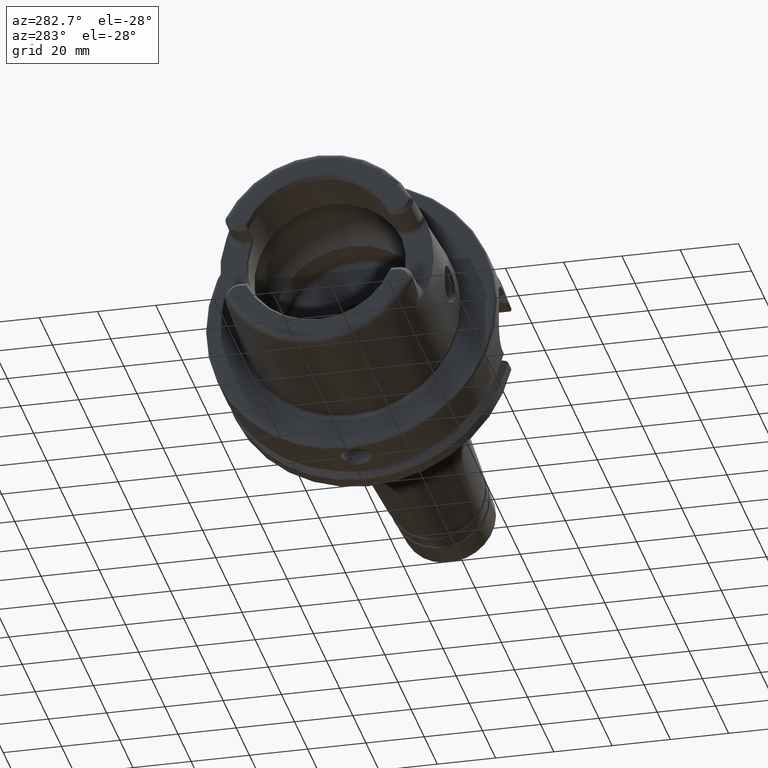
[diagram: clean part render]
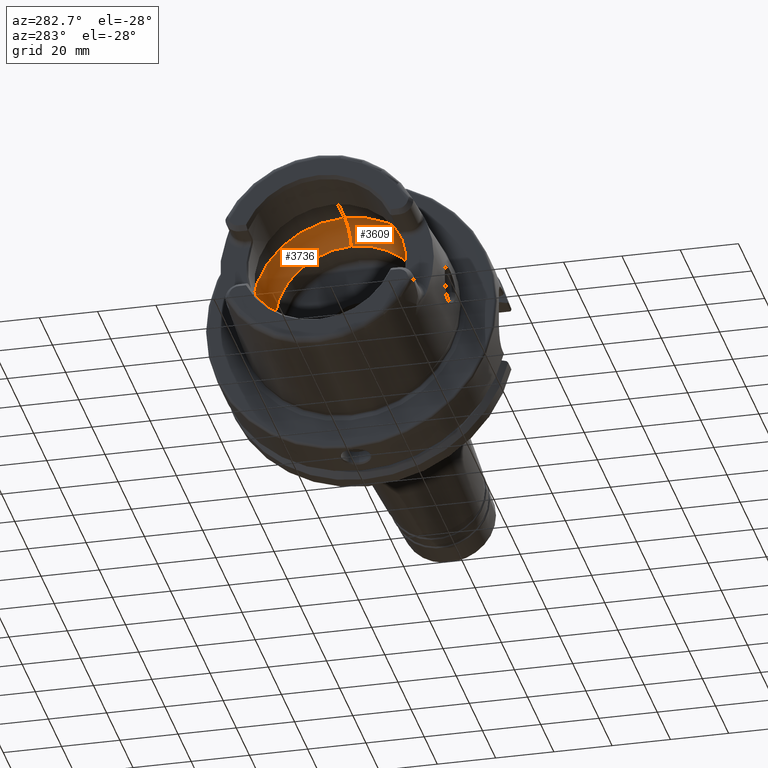
[diagram: same view with one multi-face feature highlighted, each face labeled with its STEP entity id]
A machine part, auxiliary view. The highlighted faces form ONE feature: a constant-radius fillet chain: 2 tangent blend faces with common blend radius 12 mm. The faces share edges in the B-rep.
Their STEP definitions:
[1] entity #3736 (Torus):
#227=CARTESIAN_POINT('',(1.283390375555E-2,0.E0,0.E0));
#228=DIRECTION('',(1.E0,0.E0,0.E0));
#229=DIRECTION('',(0.E0,0.E0,-1.E0));
#230=AXIS2_PLACEMENT_3D('',#227,#228,#229);
#366=CARTESIAN_POINT('',(-3.837322834646E-1,0.E0,-7.865275984252E-1));
#367=DIRECTION('',(0.E0,1.E0,0.E0));
#368=DIRECTION('',(8.393984296159E-1,0.E0,-5.435165833333E-1));
#369=AXIS2_PLACEMENT_3D('',#366,#367,#368);
#371=CARTESIAN_POINT('',(-3.837322834646E-1,0.E0,7.865275984252E-1));
#372=DIRECTION('',(0.E0,-1.E0,0.E0));
#373=DIRECTION('',(8.393984296159E-1,0.E0,5.435165833333E-1));
#374=AXIS2_PLACEMENT_3D('',#371,#372,#373);
#427=CARTESIAN_POINT('',(-3.837322834646E-1,1.253784565967E0,
-1.141317448395E-1));
#444=CARTESIAN_POINT('',(-3.837322834646E-1,0.E0,0.E0));
#445=DIRECTION('',(1.E0,0.E0,0.E0));
#446=DIRECTION('',(0.E0,0.E0,-1.E0));
#447=AXIS2_PLACEMENT_3D('',#444,#445,#446);
#449=CARTESIAN_POINT('',(-3.837322834646E-1,0.E0,0.E0));
#450=DIRECTION('',(1.E0,0.E0,0.E0));
#451=DIRECTION('',(0.E0,9.958823615031E-1,9.065496151294E-2));
#452=AXIS2_PLACEMENT_3D('',#449,#450,#451);
#469=CARTESIAN_POINT('',(-3.837322834646E-1,1.253784565967E0,
1.141317448395E-1));
#471=CARTESIAN_POINT('',(-3.543307086614E-1,1.258052776756E0,0.E0));
#472=CARTESIAN_POINT('',(-3.543307086614E-1,1.258052776756E0,
-1.331146077101E-2));
#473=CARTESIAN_POINT('',(-3.565878121064E-1,1.257774742075E0,
-3.988217029902E-2));
#474=CARTESIAN_POINT('',(-3.665535088096E-1,1.256456931714E0,
-7.842776623702E-2));
#475=CARTESIAN_POINT('',(-3.773691196250E-1,1.254834206046E0,
-1.026010131168E-1));
#476=CARTESIAN_POINT('',(-3.837322834646E-1,1.253784565967E0,
-1.141317448395E-1));
#478=CARTESIAN_POINT('',(-3.837322834646E-1,1.253784565967E0,
1.141317448395E-1));
#479=CARTESIAN_POINT('',(-3.773672210967E-1,1.254834519219E0,
1.025975727810E-1));
#480=CARTESIAN_POINT('',(-3.665503928331E-1,1.256457365407E0,
7.841910827318E-2));
#481=CARTESIAN_POINT('',(-3.565871011463E-1,1.257774826191E0,
3.987631070444E-2));
#482=CARTESIAN_POINT('',(-3.543307086614E-1,1.258052776756E0,
1.330896812620E-2));
#483=CARTESIAN_POINT('',(-3.543307086614E-1,1.258052776756E0,0.E0));
#2826=CARTESIAN_POINT('',(1.283390375555E-2,0.E0,-1.043307086614E0));
#2827=CARTESIAN_POINT('',(1.283390375555E-2,0.E0,1.043307086614E0));
#2828=VERTEX_POINT('',#2826);
#2829=VERTEX_POINT('',#2827);
#2830=CARTESIAN_POINT('',(-3.837322834646E-1,0.E0,-1.258968543307E0));
#2831=VERTEX_POINT('',#2830);
#2832=CARTESIAN_POINT('',(-3.837322834646E-1,0.E0,1.258968543307E0));
#2833=VERTEX_POINT('',#2832);
#3111=VERTEX_POINT('',#427);
#3113=VERTEX_POINT('',#469);
#3117=VERTEX_POINT('',#471);
#3722=CARTESIAN_POINT('',(-3.837322834646E-1,0.E0,0.E0));
#3723=DIRECTION('',(1.E0,0.E0,0.E0));
#3724=DIRECTION('',(0.E0,0.E0,1.E0));
#3725=AXIS2_PLACEMENT_3D('',#3722,#3723,#3724);
#3726=TOROIDAL_SURFACE('',#3725,7.865275984252E-1,4.724409448819E-1);
#3727=ORIENTED_EDGE('',*,*,#3619,.F.);
#3728=ORIENTED_EDGE('',*,*,#3681,.F.);
#3729=ORIENTED_EDGE('',*,*,#3716,.T.);
#3730=ORIENTED_EDGE('',*,*,#3601,.F.);
#3731=ORIENTED_EDGE('',*,*,#3513,.F.);
#3732=ORIENTED_EDGE('',*,*,#3598,.T.);
#3733=ORIENTED_EDGE('',*,*,#3708,.T.);
#3734=EDGE_LOOP('',(#3727,#3728,#3729,#3730,#3731,#3732,#3733));
#3735=FACE_OUTER_BOUND('',#3734,.F.);
#3736=ADVANCED_FACE('',(#3735),#3726,.F.);
#231=CIRCLE('',#230,1.043307086614E0);
#370=CIRCLE('',#369,4.724409448819E-1);
#375=CIRCLE('',#374,4.724409448819E-1);
#448=CIRCLE('',#447,1.258968543307E0);
#453=CIRCLE('',#452,1.258968543307E0);
#477=B_SPLINE_CURVE_WITH_KNOTS('',3,(#471,#472,#473,#474,#475,#476),
.UNSPECIFIED.,.F.,.F.,(4,1,1,4),(0.E0,3.333333333333E-1,6.666666666667E-1,1.E0),
.UNSPECIFIED.);
#484=B_SPLINE_CURVE_WITH_KNOTS('',3,(#478,#479,#480,#481,#482,#483),
.UNSPECIFIED.,.F.,.F.,(4,1,1,4),(0.E0,3.333333333333E-1,6.666666666667E-1,1.E0),
.UNSPECIFIED.);
#3513=EDGE_CURVE('',#2828,#2829,#231,.T.);
#3598=EDGE_CURVE('',#2828,#2831,#370,.T.);
#3601=EDGE_CURVE('',#2829,#2833,#375,.T.);
#3619=EDGE_CURVE('',#3117,#3111,#477,.T.);
#3681=EDGE_CURVE('',#3113,#3117,#484,.T.);
#3708=EDGE_CURVE('',#2831,#3111,#448,.T.);
#3716=EDGE_CURVE('',#3113,#2833,#453,.T.);
[2] entity #3609 (Torus):
#289=CARTESIAN_POINT('',(1.283390375555E-2,0.E0,0.E0));
#290=DIRECTION('',(1.E0,0.E0,0.E0));
#291=DIRECTION('',(0.E0,0.E0,1.E0));
#292=AXIS2_PLACEMENT_3D('',#289,#290,#291);
#359=CARTESIAN_POINT('',(-3.837322834646E-1,-1.253784565967E0,
-1.141317448395E-1));
#360=CARTESIAN_POINT('',(-3.773691196250E-1,-1.254834206046E0,
-1.026010131168E-1));
#361=CARTESIAN_POINT('',(-3.665535088096E-1,-1.256456931714E0,
-7.842776623702E-2));
#362=CARTESIAN_POINT('',(-3.565878121064E-1,-1.257774742075E0,
-3.988217029902E-2));
#363=CARTESIAN_POINT('',(-3.543307086614E-1,-1.258052776756E0,
-1.331146077101E-2));
#364=CARTESIAN_POINT('',(-3.543307086614E-1,-1.258052776756E0,0.E0));
#366=CARTESIAN_POINT('',(-3.837322834646E-1,0.E0,-7.865275984252E-1));
#367=DIRECTION('',(0.E0,1.E0,0.E0));
#368=DIRECTION('',(8.393984296159E-1,0.E0,-5.435165833333E-1));
#369=AXIS2_PLACEMENT_3D('',#366,#367,#368);
#371=CARTESIAN_POINT('',(-3.837322834646E-1,0.E0,7.865275984252E-1));
#372=DIRECTION('',(0.E0,-1.E0,0.E0));
#373=DIRECTION('',(8.393984296159E-1,0.E0,5.435165833333E-1));
#374=AXIS2_PLACEMENT_3D('',#371,#372,#373);
#376=CARTESIAN_POINT('',(-3.543307086614E-1,-1.258052776756E0,0.E0));
#377=CARTESIAN_POINT('',(-3.543307086614E-1,-1.258052776756E0,
1.330896812620E-2));
#378=CARTESIAN_POINT('',(-3.565871011463E-1,-1.257774826191E0,
3.987631070444E-2));
#379=CARTESIAN_POINT('',(-3.665503928331E-1,-1.256457365407E0,
7.841910827318E-2));
#380=CARTESIAN_POINT('',(-3.773672210967E-1,-1.254834519219E0,
1.025975727810E-1));
#381=CARTESIAN_POINT('',(-3.837322834646E-1,-1.253784565967E0,
1.141317448395E-1));
#500=CARTESIAN_POINT('',(-3.837322834646E-1,-1.253784565967E0,
-1.141317448395E-1));
#502=CARTESIAN_POINT('',(-3.837322834646E-1,-1.253784565967E0,
1.141317448395E-1));
#519=CARTESIAN_POINT('',(-3.837322834646E-1,0.E0,0.E0));
#520=DIRECTION('',(1.E0,0.E0,0.E0));
#521=DIRECTION('',(0.E0,0.E0,1.E0));
#522=AXIS2_PLACEMENT_3D('',#519,#520,#521);
#532=CARTESIAN_POINT('',(-3.837322834646E-1,0.E0,0.E0));
#533=DIRECTION('',(1.E0,0.E0,0.E0));
#534=DIRECTION('',(0.E0,-9.958823615031E-1,-9.065496151294E-2));
#535=AXIS2_PLACEMENT_3D('',#532,#533,#534);
#2826=CARTESIAN_POINT('',(1.283390375555E-2,0.E0,-1.043307086614E0));
#2827=CARTESIAN_POINT('',(1.283390375555E-2,0.E0,1.043307086614E0));
#2828=VERTEX_POINT('',#2826);
#2829=VERTEX_POINT('',#2827);
#2830=CARTESIAN_POINT('',(-3.837322834646E-1,0.E0,-1.258968543307E0));
#2831=VERTEX_POINT('',#2830);
#2832=CARTESIAN_POINT('',(-3.837322834646E-1,0.E0,1.258968543307E0));
#2833=VERTEX_POINT('',#2832);
#3115=VERTEX_POINT('',#500);
#3116=VERTEX_POINT('',#502);
#3118=VERTEX_POINT('',#364);
#3589=CARTESIAN_POINT('',(-3.837322834646E-1,0.E0,0.E0));
#3590=DIRECTION('',(1.E0,0.E0,0.E0));
#3591=DIRECTION('',(0.E0,0.E0,1.E0));
#3592=AXIS2_PLACEMENT_3D('',#3589,#3590,#3591);
#3593=TOROIDAL_SURFACE('',#3592,7.865275984252E-1,4.724409448819E-1);
#3595=ORIENTED_EDGE('',*,*,#3594,.F.);
#3597=ORIENTED_EDGE('',*,*,#3596,.T.);
#3599=ORIENTED_EDGE('',*,*,#3598,.F.);
#3600=ORIENTED_EDGE('',*,*,#3555,.F.);
#3602=ORIENTED_EDGE('',*,*,#3601,.T.);
#3604=ORIENTED_EDGE('',*,*,#3603,.T.);
#3606=ORIENTED_EDGE('',*,*,#3605,.F.);
#3607=EDGE_LOOP('',(#3595,#3597,#3599,#3600,#3602,#3604,#3606));
#3608=FACE_OUTER_BOUND('',#3607,.F.);
#3609=ADVANCED_FACE('',(#3608),#3593,.F.);
#293=CIRCLE('',#292,1.043307086614E0);
#365=B_SPLINE_CURVE_WITH_KNOTS('',3,(#359,#360,#361,#362,#363,#364),
.UNSPECIFIED.,.F.,.F.,(4,1,1,4),(0.E0,3.333333333333E-1,6.666666666667E-1,1.E0),
.UNSPECIFIED.);
#370=CIRCLE('',#369,4.724409448819E-1);
#375=CIRCLE('',#374,4.724409448819E-1);
#382=B_SPLINE_CURVE_WITH_KNOTS('',3,(#376,#377,#378,#379,#380,#381),
.UNSPECIFIED.,.F.,.F.,(4,1,1,4),(0.E0,3.333333333333E-1,6.666666666667E-1,1.E0),
.UNSPECIFIED.);
#523=CIRCLE('',#522,1.258968543307E0);
#536=CIRCLE('',#535,1.258968543307E0);
#3555=EDGE_CURVE('',#2829,#2828,#293,.T.);
#3594=EDGE_CURVE('',#3115,#3118,#365,.T.);
#3596=EDGE_CURVE('',#3115,#2831,#536,.T.);
#3598=EDGE_CURVE('',#2828,#2831,#370,.T.);
#3601=EDGE_CURVE('',#2829,#2833,#375,.T.);
#3603=EDGE_CURVE('',#2833,#3116,#523,.T.);
#3605=EDGE_CURVE('',#3118,#3116,#382,.T.);